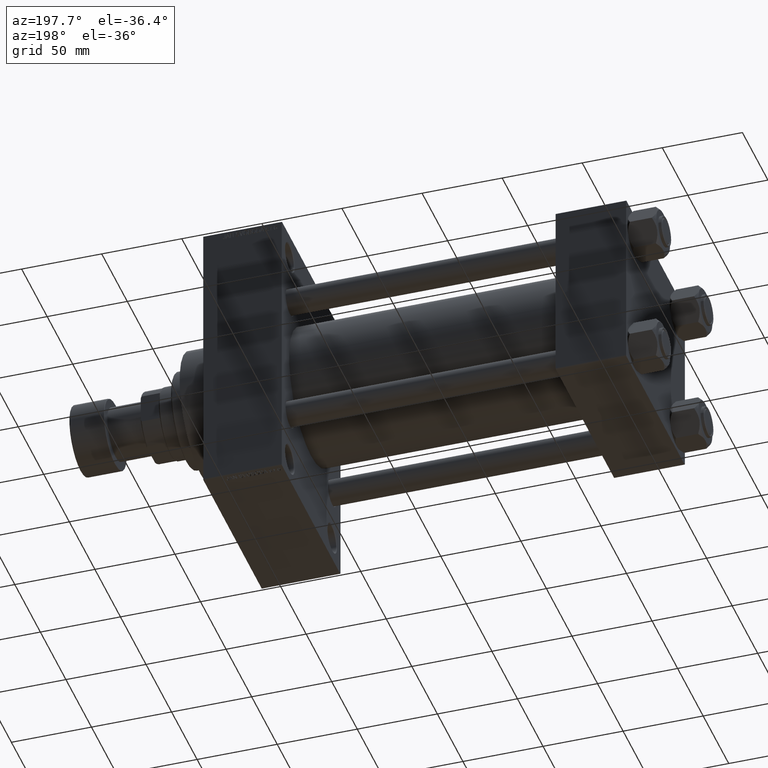
[diagram: clean part render]
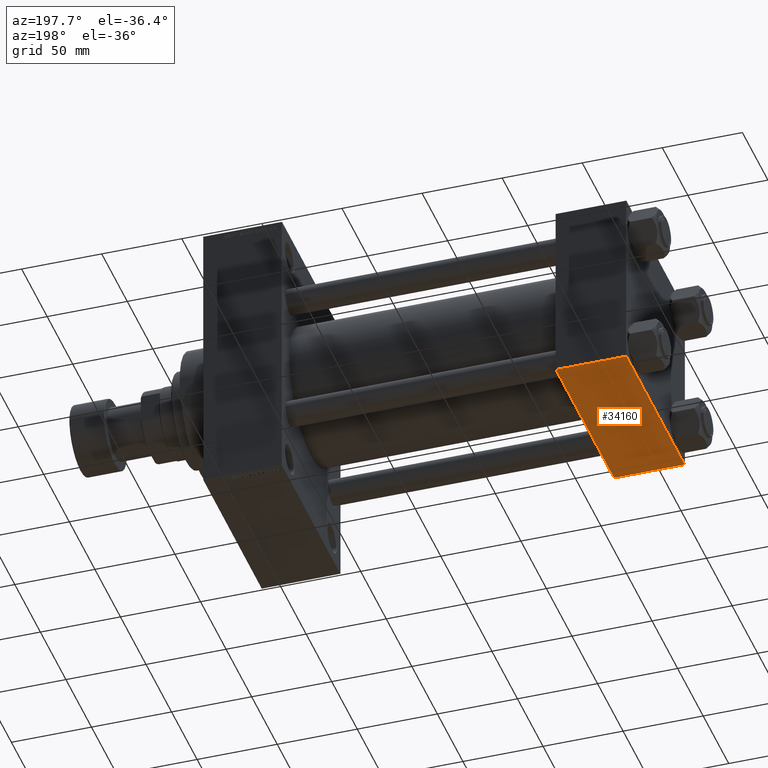
[diagram: same view with one face highlighted and labeled with its STEP entity id]
A machine part, auxiliary view. The second image highlights one B-rep face of the part: STEP entity #34160.
In plain terms, the highlighted planar face has unit normal (0, 0, -1).
Its self-contained STEP definition (entity closure, byte-faithful):
#3748 = PLANE ( 'NONE',  #24786 ) ;
#5625 = VECTOR ( 'NONE', #7260, 1000.000000000000000 ) ;
#6366 = ORIENTED_EDGE ( 'NONE', *, *, #23870, .T. ) ;
#7260 = DIRECTION ( 'NONE',  ( 0.000000000000000000, -1.000000000000000000, -1.206764157201257045E-16 ) ) ;
#7417 = CARTESIAN_POINT ( 'NONE',  ( 44.00000000000000000, 57.49999999999999289, -57.49999999999999289 ) ) ;
#7449 = ORIENTED_EDGE ( 'NONE', *, *, #46755, .T. ) ;
#9171 = EDGE_CURVE ( 'NONE', #26710, #46608, #33306, .T. ) ;
#11548 = VERTEX_POINT ( 'NONE', #33242 ) ;
#13070 = CARTESIAN_POINT ( 'NONE',  ( 0.000000000000000000, -57.00000000000000711, -57.50000000000000711 ) ) ;
#16233 = DIRECTION ( 'NONE',  ( -1.000000000000000000, 0.000000000000000000, 0.000000000000000000 ) ) ;
#18374 = CARTESIAN_POINT ( 'NONE',  ( 0.000000000000000000, 57.49999999999999289, -57.49999999999999289 ) ) ;
#19616 = VECTOR ( 'NONE', #33072, 1000.000000000000000 ) ;
#20251 = EDGE_CURVE ( 'NONE', #11548, #46608, #46783, .T. ) ;
#23870 = EDGE_CURVE ( 'NONE', #26710, #38144, #46551, .T. ) ;
#24083 = CARTESIAN_POINT ( 'NONE',  ( 44.00000000000000000, 57.00000000000002132, -57.49999999999999289 ) ) ;
#24786 = AXIS2_PLACEMENT_3D ( 'NONE', #7417, #40885, #38181 ) ;
#25113 = CARTESIAN_POINT ( 'NONE',  ( 0.000000000000000000, -57.00000000000000711, -57.50000000000000711 ) ) ;
#25598 = LINE ( 'NONE', #48070, #5625 ) ;
#26710 = VERTEX_POINT ( 'NONE', #39158 ) ;
#26823 = ORIENTED_EDGE ( 'NONE', *, *, #9171, .F. ) ;
#30798 = VECTOR ( 'NONE', #16233, 1000.000000000000000 ) ;
#33072 = DIRECTION ( 'NONE',  ( 0.000000000000000000, -1.000000000000000000, -1.206764157201257045E-16 ) ) ;
#33242 = CARTESIAN_POINT ( 'NONE',  ( 44.00000000000000000, -57.00000000000000711, -57.50000000000000711 ) ) ;
#33306 = LINE ( 'NONE', #18374, #19616 ) ;
#34160 = ADVANCED_FACE ( 'NONE', ( #44549 ), #3748, .T. ) ;
#38144 = VERTEX_POINT ( 'NONE', #46863 ) ;
#38181 = DIRECTION ( 'NONE',  ( 0.000000000000000000, 1.000000000000000000, 1.206764157201257045E-16 ) ) ;
#38942 = EDGE_LOOP ( 'NONE', ( #26823, #6366, #7449, #40712 ) ) ;
#39158 = CARTESIAN_POINT ( 'NONE',  ( 0.000000000000000000, 57.00000000000002132, -57.49999999999999289 ) ) ;
#39205 = DIRECTION ( 'NONE',  ( 1.000000000000000000, 0.000000000000000000, 0.000000000000000000 ) ) ;
#40712 = ORIENTED_EDGE ( 'NONE', *, *, #20251, .T. ) ;
#40885 = DIRECTION ( 'NONE',  ( 0.000000000000000000, 1.206764157201257045E-16, -1.000000000000000000 ) ) ;
#42558 = VECTOR ( 'NONE', #39205, 1000.000000000000000 ) ;
#44549 = FACE_OUTER_BOUND ( 'NONE', #38942, .T. ) ;
#46551 = LINE ( 'NONE', #24083, #42558 ) ;
#46608 = VERTEX_POINT ( 'NONE', #25113 ) ;
#46755 = EDGE_CURVE ( 'NONE', #38144, #11548, #25598, .T. ) ;
#46783 = LINE ( 'NONE', #13070, #30798 ) ;
#46863 = CARTESIAN_POINT ( 'NONE',  ( 44.00000000000000000, 57.00000000000002132, -57.49999999999999289 ) ) ;
#48070 = CARTESIAN_POINT ( 'NONE',  ( 44.00000000000000000, 57.49999999999999289, -57.49999999999999289 ) ) ;